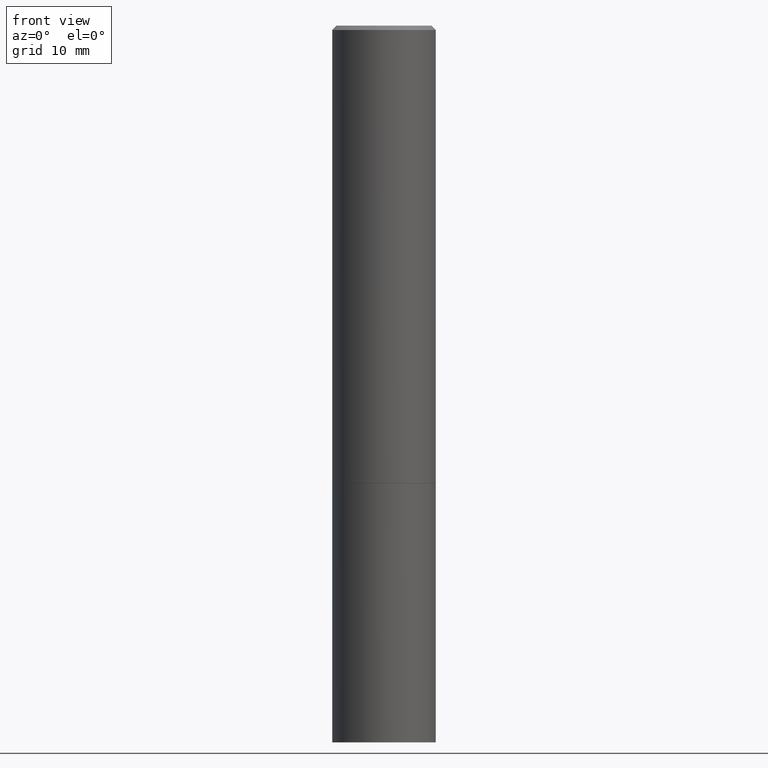
[diagram: clean part render]
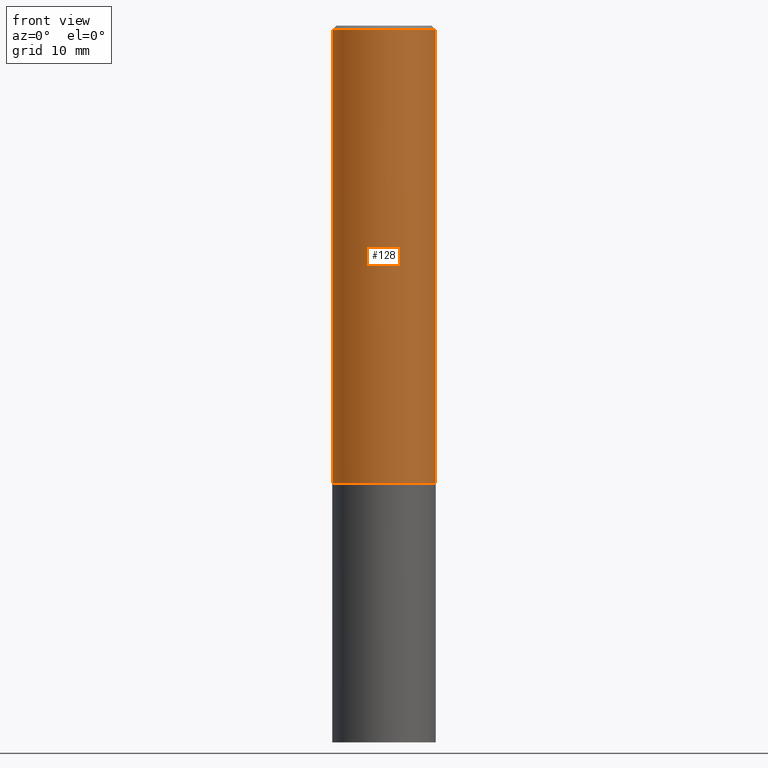
[diagram: same view with one face highlighted and labeled with its STEP entity id]
A machine part, front view. The second image highlights one B-rep face of the part: STEP entity #128.
In plain terms, the highlighted cylindrical surface (partial cylindrical patch) has radius 5.9995 mm, axis along (-0, 0, 1).
Its self-contained STEP definition (entity closure, byte-faithful):
#1 = EDGE_CURVE ( 'NONE', #232, #314, #76, .T. ) ;
#12 = CIRCLE ( 'NONE', #242, 0.2361999999999997990 ) ;
#14 = ORIENTED_EDGE ( 'NONE', *, *, #159, .F. ) ;
#37 = DIRECTION ( 'NONE',  ( -2.445468806185136877E-29, 3.491481338843145188E-15, 1.000000000000000000 ) ) ;
#53 = ORIENTED_EDGE ( 'NONE', *, *, #190, .T. ) ;
#76 = CIRCLE ( 'NONE', #205, 0.2362000000000000210 ) ;
#81 = ORIENTED_EDGE ( 'NONE', *, *, #107, .F. ) ;
#90 = CARTESIAN_POINT ( 'NONE',  ( -0.2361999999999997990, 1.579546157692631649E-15, -0.02000000000000005940 ) ) ;
#92 = DIRECTION ( 'NONE',  ( -2.445468806185136597E-29, 3.491481338843145583E-15, 1.000000000000000000 ) ) ;
#97 = VECTOR ( 'NONE', #37, 39.37007874015748143 ) ;
#105 = CARTESIAN_POINT ( 'NONE',  ( 0.2362000000000000210, -8.931209264760760934E-15, -2.085599999999999898 ) ) ;
#107 = EDGE_CURVE ( 'NONE', #171, #113, #12, .T. ) ;
#113 = VERTEX_POINT ( 'NONE', #312 ) ;
#128 = ADVANCED_FACE ( 'NONE', ( #257 ), #180, .T. ) ;
#133 = ORIENTED_EDGE ( 'NONE', *, *, #1, .T. ) ;
#136 = DIRECTION ( 'NONE',  ( -2.445468806185136597E-29, 3.491481338843145583E-15, 1.000000000000000000 ) ) ;
#151 = DIRECTION ( 'NONE',  ( -2.445468806185136877E-29, 3.491481338843145188E-15, 1.000000000000000000 ) ) ;
#154 = CARTESIAN_POINT ( 'NONE',  ( 0.000000000000000000, 0.000000000000000000, 0.000000000000000000 ) ) ;
#159 = EDGE_CURVE ( 'NONE', #232, #171, #185, .T. ) ;
#171 = VERTEX_POINT ( 'NONE', #90 ) ;
#180 = CYLINDRICAL_SURFACE ( 'NONE', #277, 0.2361999999999999378 ) ;
#183 = LINE ( 'NONE', #366, #225 ) ;
#185 = LINE ( 'NONE', #322, #97 ) ;
#190 = EDGE_CURVE ( 'NONE', #314, #113, #183, .T. ) ;
#195 = CARTESIAN_POINT ( 'NONE',  ( -0.2362000000000000210, -1.997529611668705882E-15, -2.085599999999999898 ) ) ;
#197 = DIRECTION ( 'NONE',  ( 1.000000000000000000, -6.982962677686264344E-15, 0.000000000000000000 ) ) ;
#205 = AXIS2_PLACEMENT_3D ( 'NONE', #342, #92, #197 ) ;
#225 = VECTOR ( 'NONE', #151, 39.37007874015748143 ) ;
#232 = VERTEX_POINT ( 'NONE', #195 ) ;
#242 = AXIS2_PLACEMENT_3D ( 'NONE', #362, #136, #294 ) ;
#257 = FACE_OUTER_BOUND ( 'NONE', #333, .T. ) ;
#277 = AXIS2_PLACEMENT_3D ( 'NONE', #154, #324, #295 ) ;
#294 = DIRECTION ( 'NONE',  ( 1.000000000000000000, -6.982962677686266711E-15, 0.000000000000000000 ) ) ;
#295 = DIRECTION ( 'NONE',  ( 1.000000000000000000, -6.982962677686266711E-15, 4.876176775795935793E-29 ) ) ;
#312 = CARTESIAN_POINT ( 'NONE',  ( 0.2361999999999997990, -1.690279253850497391E-15, -0.02000000000000005940 ) ) ;
#314 = VERTEX_POINT ( 'NONE', #105 ) ;
#322 = CARTESIAN_POINT ( 'NONE',  ( -0.2361999999999999378, 1.678301941865356197E-15, -1.161852468318208476E-29 ) ) ;
#324 = DIRECTION ( 'NONE',  ( -2.445468806185136597E-29, 3.491481338843145583E-15, 1.000000000000000000 ) ) ;
#333 = EDGE_LOOP ( 'NONE', ( #14, #133, #53, #81 ) ) ;
#342 = CARTESIAN_POINT ( 'NONE',  ( 5.100269742179720673E-29, -7.281833480291264409E-15, -2.085599999999999898 ) ) ;
#362 = CARTESIAN_POINT ( 'NONE',  ( 4.890937612370288047E-31, -6.982962677686311331E-17, -0.02000000000000005940 ) ) ;
#366 = CARTESIAN_POINT ( 'NONE',  ( 0.2361999999999999378, -1.649375784469495736E-15, 1.151752954442999668E-29 ) ) ;